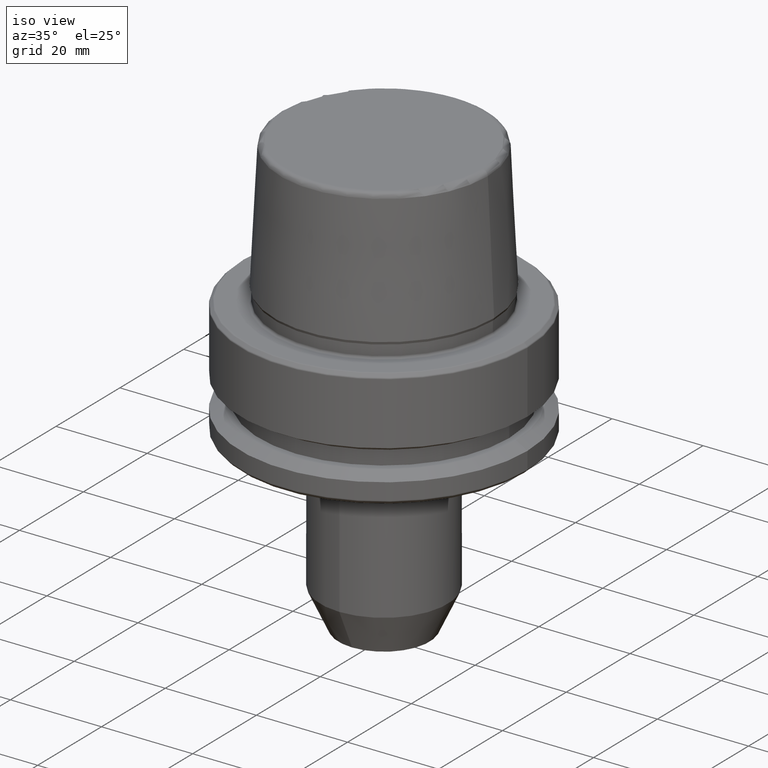
[diagram: clean part render]
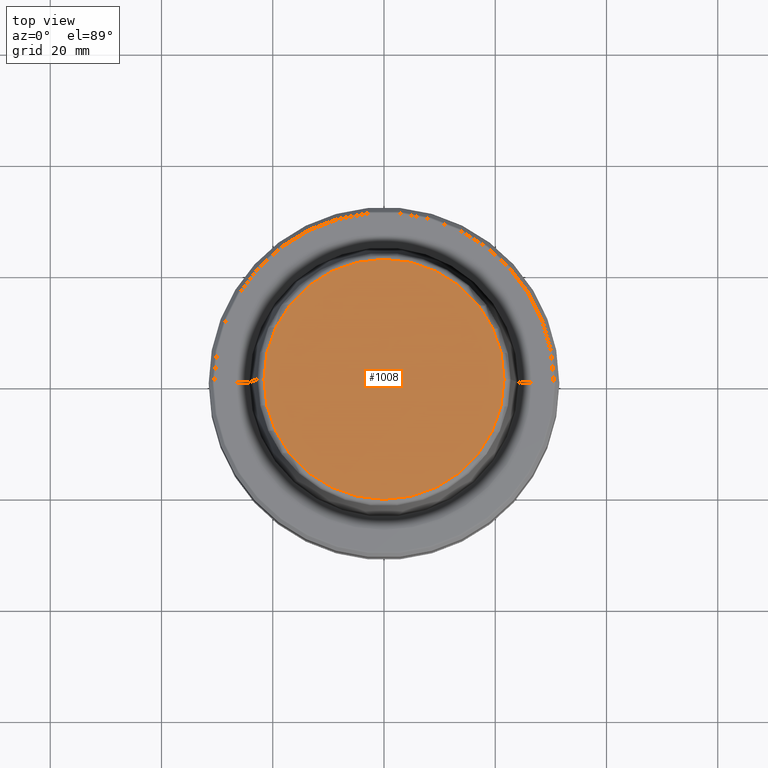
[diagram: tour spotlight — one face highlighted and labeled with its STEP entity id]
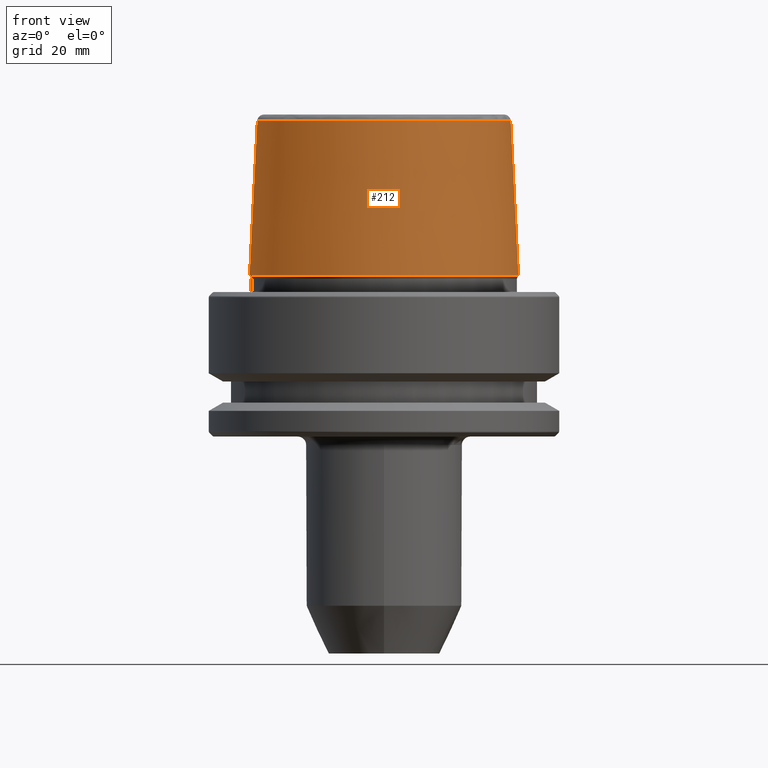
[diagram: tour spotlight — one face highlighted and labeled with its STEP entity id]
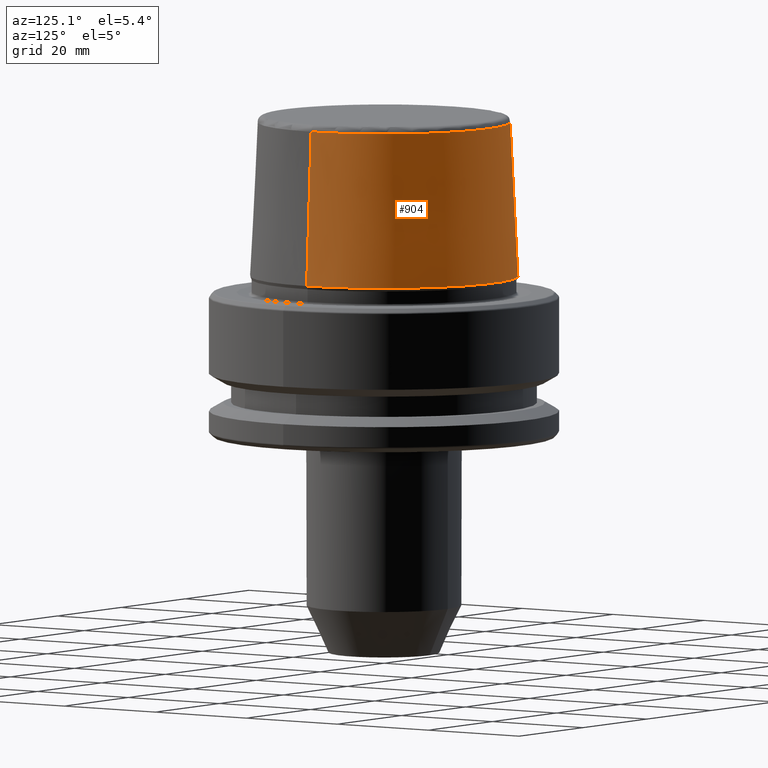
[diagram: tour spotlight — one face highlighted and labeled with its STEP entity id]
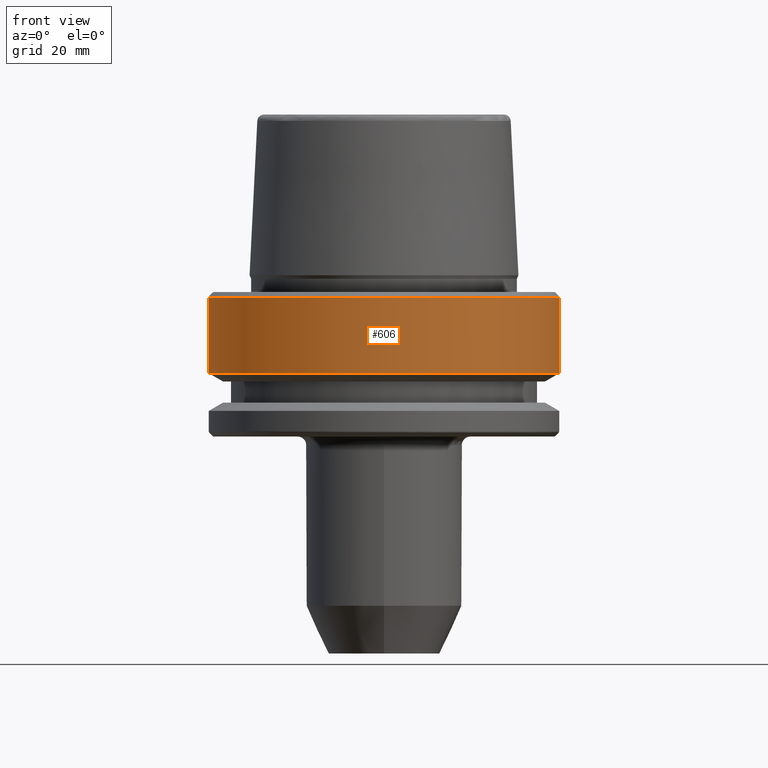
[diagram: tour spotlight — one face highlighted and labeled with its STEP entity id]
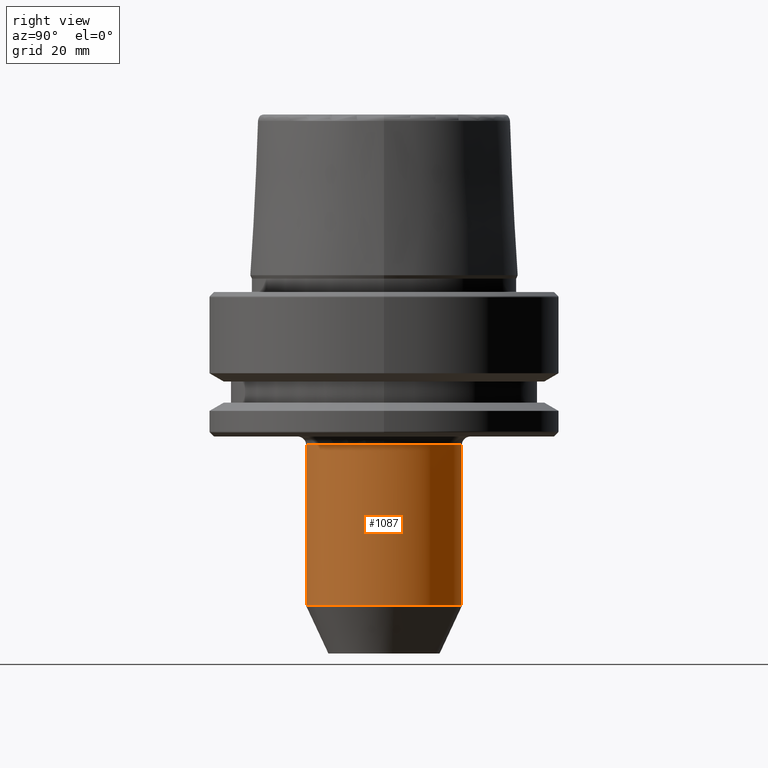
[diagram: tour spotlight — one face highlighted and labeled with its STEP entity id]
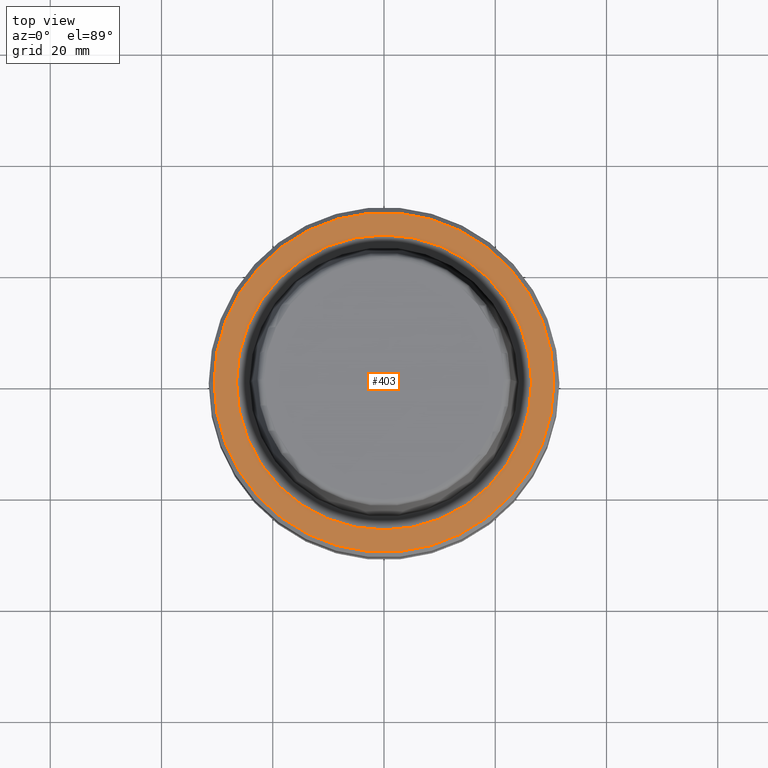
[diagram: tour spotlight — one face highlighted and labeled with its STEP entity id]
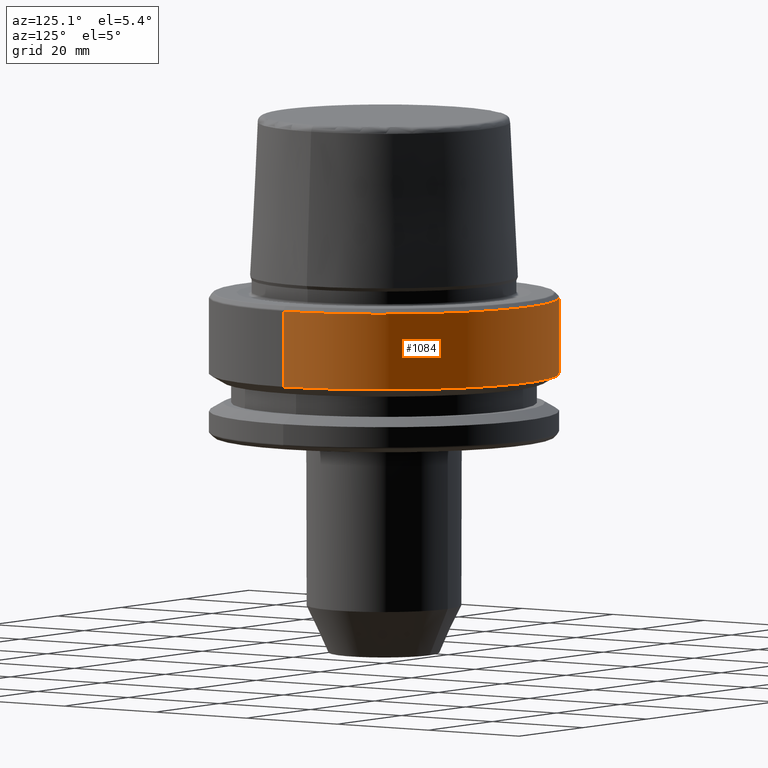
[diagram: tour spotlight — one face highlighted and labeled with its STEP entity id]
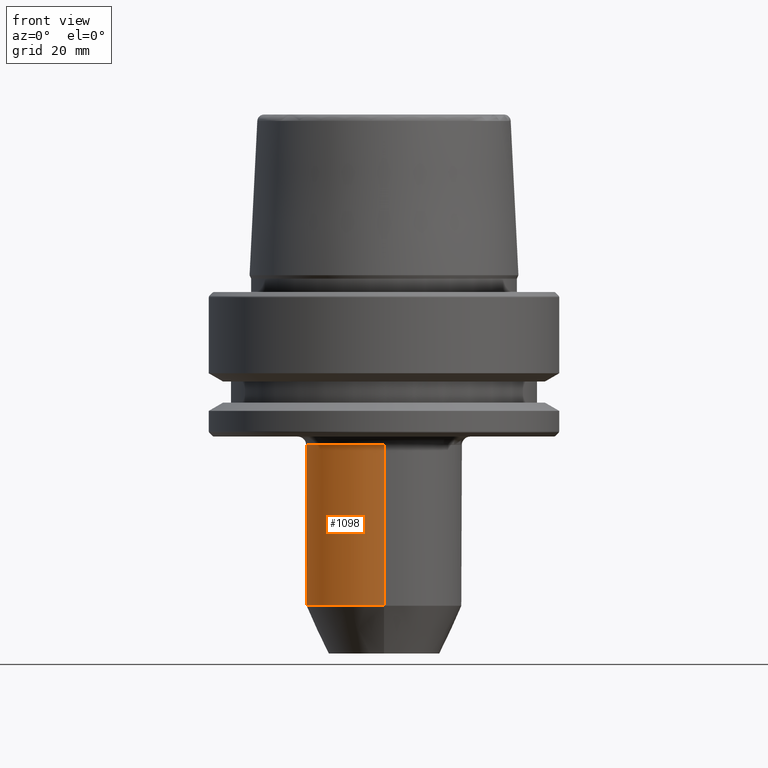
[diagram: tour spotlight — one face highlighted and labeled with its STEP entity id]
A machine part: a face-by-face anatomy tour. The part has 46 B-rep faces; the first image is the clean iso view, then the 8 largest visible faces are spotlighted one at a time (largest first), each with its STEP entity span.

Face 1 — top view, entity #1008. In plain terms, the highlighted planar face has unit normal (0, 0, -1).
Definition (entity closure, byte-faithful):
#27 = AXIS2_PLACEMENT_3D ( 'NONE', #905, #327, #1014 ) ;
#294 = CARTESIAN_POINT ( 'NONE',  ( 0.0000000000000000000, 0.0000000000000000000, 31.89999999999999900 ) ) ;
#319 = CIRCLE ( 'NONE', #27, 21.58108272732117100 ) ;
#327 = DIRECTION ( 'NONE',  ( -0.0000000000000000000, -0.0000000000000000000, 1.000000000000000000 ) ) ;
#358 = AXIS2_PLACEMENT_3D ( 'NONE', #744, #431, #1145 ) ;
#413 = AXIS2_PLACEMENT_3D ( 'NONE', #294, #1279, #685 ) ;
#431 = DIRECTION ( 'NONE',  ( -0.0000000000000000000, -0.0000000000000000000, 1.000000000000000000 ) ) ;
#524 = VERTEX_POINT ( 'NONE', #831 ) ;
#628 = ORIENTED_EDGE ( 'NONE', *, *, #1166, .T. ) ;
#684 = EDGE_CURVE ( 'NONE', #859, #524, #843, .T. ) ;
#685 = DIRECTION ( 'NONE',  ( -1.000000000000000000, 0.0000000000000000000, -0.0000000000000000000 ) ) ;
#744 = CARTESIAN_POINT ( 'NONE',  ( 0.0000000000000000000, 0.0000000000000000000, 31.89999999999999900 ) ) ;
#831 = CARTESIAN_POINT ( 'NONE',  ( 21.58108272732117100, 0.0000000000000000000, 31.89999999999999900 ) ) ;
#843 = CIRCLE ( 'NONE', #358, 21.58108272732117100 ) ;
#859 = VERTEX_POINT ( 'NONE', #1252 ) ;
#905 = CARTESIAN_POINT ( 'NONE',  ( 0.0000000000000000000, 0.0000000000000000000, 31.89999999999999900 ) ) ;
#962 = FACE_OUTER_BOUND ( 'NONE', #1271, .T. ) ;
#1008 = ADVANCED_FACE ( 'NONE', ( #962 ), #1174, .F. ) ;
#1014 = DIRECTION ( 'NONE',  ( 1.000000000000000000, 0.0000000000000000000, 0.0000000000000000000 ) ) ;
#1076 = ORIENTED_EDGE ( 'NONE', *, *, #684, .T. ) ;
#1145 = DIRECTION ( 'NONE',  ( 1.000000000000000000, 0.0000000000000000000, 0.0000000000000000000 ) ) ;
#1166 = EDGE_CURVE ( 'NONE', #524, #859, #319, .T. ) ;
#1174 = PLANE ( 'NONE',  #413 ) ;
#1252 = CARTESIAN_POINT ( 'NONE',  ( -21.58108272732117100, 2.716307157494421400E-015, 31.89999999999999900 ) ) ;
#1271 = EDGE_LOOP ( 'NONE', ( #628, #1076 ) ) ;
#1279 = DIRECTION ( 'NONE',  ( 0.0000000000000000000, 0.0000000000000000000, -1.000000000000000000 ) ) ;

Face 2 — front view, entity #212. In plain terms, the highlighted conical surface has half-angle 2.868 deg.
Definition (entity closure, byte-faithful):
#1 = EDGE_CURVE ( 'NONE', #22, #1111, #544, .T. ) ;
#22 = VERTEX_POINT ( 'NONE', #974 ) ;
#67 = CARTESIAN_POINT ( 'NONE',  ( -24.17032625081241900, 0.0000000000000000000, 3.000000000000002700 ) ) ;
#106 = DIRECTION ( 'NONE',  ( 1.000000000000000000, 0.0000000000000000000, 0.0000000000000000000 ) ) ;
#113 = ORIENTED_EDGE ( 'NONE', *, *, #1068, .F. ) ;
#120 = DIRECTION ( 'NONE',  ( 0.0000000000000000000, 0.0000000000000000000, -1.000000000000000000 ) ) ;
#137 = ORIENTED_EDGE ( 'NONE', *, *, #1, .T. ) ;
#148 = VERTEX_POINT ( 'NONE', #1227 ) ;
#192 = EDGE_CURVE ( 'NONE', #148, #22, #292, .T. ) ;
#199 = DIRECTION ( 'NONE',  ( 0.05003611051310799500, 6.127656258166094300E-018, -0.9987474093306675200 ) ) ;
#206 = DIRECTION ( 'NONE',  ( -0.0000000000000000000, -0.0000000000000000000, 1.000000000000000000 ) ) ;
#212 = ADVANCED_FACE ( 'NONE', ( #264 ), #1235, .T. ) ;
#258 = CARTESIAN_POINT ( 'NONE',  ( 0.0000000000000000000, 0.0000000000000000000, 3.000000000000002700 ) ) ;
#263 = AXIS2_PLACEMENT_3D ( 'NONE', #784, #206, #106 ) ;
#264 = FACE_OUTER_BOUND ( 'NONE', #1257, .T. ) ;
#292 = LINE ( 'NONE', #67, #701 ) ;
#299 = AXIS2_PLACEMENT_3D ( 'NONE', #258, #120, #797 ) ;
#303 = CARTESIAN_POINT ( 'NONE',  ( 24.17032625081241900, 2.960011267740467600E-015, 3.000000000000002700 ) ) ;
#521 = AXIS2_PLACEMENT_3D ( 'NONE', #585, #1270, #678 ) ;
#544 = CIRCLE ( 'NONE', #263, 24.17032625081241900 ) ;
#567 = VERTEX_POINT ( 'NONE', #863 ) ;
#585 = CARTESIAN_POINT ( 'NONE',  ( 0.0000000000000000000, 0.0000000000000000000, 30.76004333261571900 ) ) ;
#609 = CARTESIAN_POINT ( 'NONE',  ( 24.17032625081241900, 2.960011267740467600E-015, 3.000000000000002700 ) ) ;
#678 = DIRECTION ( 'NONE',  ( 1.000000000000000000, 0.0000000000000000000, 0.0000000000000000000 ) ) ;
#701 = VECTOR ( 'NONE', #1119, 1000.000000000000200 ) ;
#772 = LINE ( 'NONE', #303, #1206 ) ;
#784 = CARTESIAN_POINT ( 'NONE',  ( 0.0000000000000000000, 0.0000000000000000000, 3.000000000000002700 ) ) ;
#797 = DIRECTION ( 'NONE',  ( -1.000000000000000000, 0.0000000000000000000, 0.0000000000000000000 ) ) ;
#863 = CARTESIAN_POINT ( 'NONE',  ( 22.77957961851797500, 0.0000000000000000000, 30.76004333261571900 ) ) ;
#948 = EDGE_CURVE ( 'NONE', #148, #567, #1272, .T. ) ;
#974 = CARTESIAN_POINT ( 'NONE',  ( -24.17032625081241900, 0.0000000000000000000, 3.000000000000002700 ) ) ;
#1022 = ORIENTED_EDGE ( 'NONE', *, *, #948, .F. ) ;
#1023 = ORIENTED_EDGE ( 'NONE', *, *, #192, .T. ) ;
#1068 = EDGE_CURVE ( 'NONE', #567, #1111, #772, .T. ) ;
#1111 = VERTEX_POINT ( 'NONE', #609 ) ;
#1119 = DIRECTION ( 'NONE',  ( -0.05003611051310799500, 0.0000000000000000000, -0.9987474093306675200 ) ) ;
#1206 = VECTOR ( 'NONE', #199, 1000.000000000000200 ) ;
#1227 = CARTESIAN_POINT ( 'NONE',  ( -22.77957961851797500, 2.789693926574032200E-015, 30.76004333261571900 ) ) ;
#1235 = CONICAL_SURFACE ( 'NONE', #299, 24.17032625081241900, 0.05005701257455992500 ) ;
#1257 = EDGE_LOOP ( 'NONE', ( #113, #1022, #1023, #137 ) ) ;
#1270 = DIRECTION ( 'NONE',  ( -0.0000000000000000000, -0.0000000000000000000, 1.000000000000000000 ) ) ;
#1272 = CIRCLE ( 'NONE', #521, 22.77957961851797500 ) ;

Face 3 — auxiliary view, entity #904. In plain terms, the highlighted conical surface has half-angle 2.868 deg.
Definition (entity closure, byte-faithful):
#22 = VERTEX_POINT ( 'NONE', #974 ) ;
#58 = DIRECTION ( 'NONE',  ( 1.000000000000000000, 0.0000000000000000000, 0.0000000000000000000 ) ) ;
#67 = CARTESIAN_POINT ( 'NONE',  ( -24.17032625081241900, 0.0000000000000000000, 3.000000000000002700 ) ) ;
#70 = EDGE_LOOP ( 'NONE', ( #752, #1223, #382, #224 ) ) ;
#78 = AXIS2_PLACEMENT_3D ( 'NONE', #673, #765, #1263 ) ;
#100 = CARTESIAN_POINT ( 'NONE',  ( 0.0000000000000000000, 0.0000000000000000000, 3.000000000000002700 ) ) ;
#139 = DIRECTION ( 'NONE',  ( -0.0000000000000000000, -0.0000000000000000000, 1.000000000000000000 ) ) ;
#148 = VERTEX_POINT ( 'NONE', #1227 ) ;
#192 = EDGE_CURVE ( 'NONE', #148, #22, #292, .T. ) ;
#199 = DIRECTION ( 'NONE',  ( 0.05003611051310799500, 6.127656258166094300E-018, -0.9987474093306675200 ) ) ;
#215 = EDGE_CURVE ( 'NONE', #1111, #22, #1032, .T. ) ;
#224 = ORIENTED_EDGE ( 'NONE', *, *, #192, .F. ) ;
#233 = AXIS2_PLACEMENT_3D ( 'NONE', #100, #759, #58 ) ;
#292 = LINE ( 'NONE', #67, #701 ) ;
#303 = CARTESIAN_POINT ( 'NONE',  ( 24.17032625081241900, 2.960011267740467600E-015, 3.000000000000002700 ) ) ;
#382 = ORIENTED_EDGE ( 'NONE', *, *, #215, .T. ) ;
#567 = VERTEX_POINT ( 'NONE', #863 ) ;
#609 = CARTESIAN_POINT ( 'NONE',  ( 24.17032625081241900, 2.960011267740467600E-015, 3.000000000000002700 ) ) ;
#669 = FACE_OUTER_BOUND ( 'NONE', #70, .T. ) ;
#673 = CARTESIAN_POINT ( 'NONE',  ( 0.0000000000000000000, 0.0000000000000000000, 3.000000000000002700 ) ) ;
#701 = VECTOR ( 'NONE', #1119, 1000.000000000000200 ) ;
#719 = CARTESIAN_POINT ( 'NONE',  ( 0.0000000000000000000, 0.0000000000000000000, 30.76004333261571900 ) ) ;
#739 = EDGE_CURVE ( 'NONE', #567, #148, #1164, .T. ) ;
#752 = ORIENTED_EDGE ( 'NONE', *, *, #739, .F. ) ;
#759 = DIRECTION ( 'NONE',  ( -0.0000000000000000000, -0.0000000000000000000, 1.000000000000000000 ) ) ;
#765 = DIRECTION ( 'NONE',  ( 0.0000000000000000000, 0.0000000000000000000, -1.000000000000000000 ) ) ;
#772 = LINE ( 'NONE', #303, #1206 ) ;
#819 = DIRECTION ( 'NONE',  ( 1.000000000000000000, 0.0000000000000000000, 0.0000000000000000000 ) ) ;
#863 = CARTESIAN_POINT ( 'NONE',  ( 22.77957961851797500, 0.0000000000000000000, 30.76004333261571900 ) ) ;
#904 = ADVANCED_FACE ( 'NONE', ( #669 ), #1007, .T. ) ;
#960 = AXIS2_PLACEMENT_3D ( 'NONE', #719, #139, #819 ) ;
#974 = CARTESIAN_POINT ( 'NONE',  ( -24.17032625081241900, 0.0000000000000000000, 3.000000000000002700 ) ) ;
#1007 = CONICAL_SURFACE ( 'NONE', #78, 24.17032625081241900, 0.05005701257455992500 ) ;
#1032 = CIRCLE ( 'NONE', #233, 24.17032625081241900 ) ;
#1068 = EDGE_CURVE ( 'NONE', #567, #1111, #772, .T. ) ;
#1111 = VERTEX_POINT ( 'NONE', #609 ) ;
#1119 = DIRECTION ( 'NONE',  ( -0.05003611051310799500, 0.0000000000000000000, -0.9987474093306675200 ) ) ;
#1164 = CIRCLE ( 'NONE', #960, 22.77957961851797500 ) ;
#1206 = VECTOR ( 'NONE', #199, 1000.000000000000200 ) ;
#1223 = ORIENTED_EDGE ( 'NONE', *, *, #1068, .T. ) ;
#1227 = CARTESIAN_POINT ( 'NONE',  ( -22.77957961851797500, 2.789693926574032200E-015, 30.76004333261571900 ) ) ;
#1263 = DIRECTION ( 'NONE',  ( -1.000000000000000000, 0.0000000000000000000, 0.0000000000000000000 ) ) ;

Face 4 — front view, entity #606. In plain terms, the highlighted cylindrical surface (partial cylindrical patch) has radius 31.5 mm, axis along (-0, -0, 1).
Definition (entity closure, byte-faithful):
#14 = AXIS2_PLACEMENT_3D ( 'NONE', #235, #920, #340 ) ;
#46 = DIRECTION ( 'NONE',  ( -0.0000000000000000000, -0.0000000000000000000, 1.000000000000000000 ) ) ;
#65 = VECTOR ( 'NONE', #513, 1000.000000000000000 ) ;
#112 = DIRECTION ( 'NONE',  ( -0.0000000000000000000, -0.0000000000000000000, 1.000000000000000000 ) ) ;
#156 = FACE_OUTER_BOUND ( 'NONE', #480, .T. ) ;
#176 = ORIENTED_EDGE ( 'NONE', *, *, #1236, .T. ) ;
#188 = CARTESIAN_POINT ( 'NONE',  ( 0.0000000000000000000, 0.0000000000000000000, -0.9656854249492363700 ) ) ;
#235 = CARTESIAN_POINT ( 'NONE',  ( 0.0000000000000000000, 0.0000000000000000000, -14.62250092524070100 ) ) ;
#272 = ORIENTED_EDGE ( 'NONE', *, *, #964, .F. ) ;
#283 = EDGE_CURVE ( 'NONE', #680, #838, #490, .T. ) ;
#289 = DIRECTION ( 'NONE',  ( 1.000000000000000000, 0.0000000000000000000, 0.0000000000000000000 ) ) ;
#340 = DIRECTION ( 'NONE',  ( 1.000000000000000000, 0.0000000000000000000, 0.0000000000000000000 ) ) ;
#360 = CARTESIAN_POINT ( 'NONE',  ( -31.50000000000000000, 3.857637417314162700E-015, -14.62250092524070100 ) ) ;
#450 = CARTESIAN_POINT ( 'NONE',  ( 31.50000000000000000, 0.0000000000000000000, -0.9656854249492363700 ) ) ;
#457 = LINE ( 'NONE', #1172, #65 ) ;
#480 = EDGE_LOOP ( 'NONE', ( #977, #176, #632, #272 ) ) ;
#490 = LINE ( 'NONE', #1230, #751 ) ;
#510 = VERTEX_POINT ( 'NONE', #619 ) ;
#513 = DIRECTION ( 'NONE',  ( -0.0000000000000000000, -0.0000000000000000000, 1.000000000000000000 ) ) ;
#517 = EDGE_CURVE ( 'NONE', #614, #510, #457, .T. ) ;
#576 = CARTESIAN_POINT ( 'NONE',  ( 31.50000000000000000, 0.0000000000000000000, -14.62250092524070100 ) ) ;
#606 = ADVANCED_FACE ( 'NONE', ( #156 ), #1196, .T. ) ;
#614 = VERTEX_POINT ( 'NONE', #360 ) ;
#619 = CARTESIAN_POINT ( 'NONE',  ( -31.50000000000000000, 3.857637417314161900E-015, -0.9656854249492363700 ) ) ;
#632 = ORIENTED_EDGE ( 'NONE', *, *, #283, .T. ) ;
#680 = VERTEX_POINT ( 'NONE', #576 ) ;
#736 = AXIS2_PLACEMENT_3D ( 'NONE', #188, #869, #289 ) ;
#751 = VECTOR ( 'NONE', #112, 1000.000000000000000 ) ;
#792 = AXIS2_PLACEMENT_3D ( 'NONE', #1113, #46, #845 ) ;
#838 = VERTEX_POINT ( 'NONE', #450 ) ;
#845 = DIRECTION ( 'NONE',  ( 1.000000000000000000, 0.0000000000000000000, 0.0000000000000000000 ) ) ;
#849 = CIRCLE ( 'NONE', #736, 31.50000000000000000 ) ;
#869 = DIRECTION ( 'NONE',  ( -0.0000000000000000000, -0.0000000000000000000, 1.000000000000000000 ) ) ;
#879 = CIRCLE ( 'NONE', #14, 31.50000000000000000 ) ;
#920 = DIRECTION ( 'NONE',  ( -0.0000000000000000000, -0.0000000000000000000, 1.000000000000000000 ) ) ;
#964 = EDGE_CURVE ( 'NONE', #510, #838, #849, .T. ) ;
#977 = ORIENTED_EDGE ( 'NONE', *, *, #517, .F. ) ;
#1113 = CARTESIAN_POINT ( 'NONE',  ( 0.0000000000000000000, 0.0000000000000000000, 78.96908074195309300 ) ) ;
#1172 = CARTESIAN_POINT ( 'NONE',  ( -31.50000000000000000, 3.857637417314162700E-015, 78.96908074195309300 ) ) ;
#1196 = CYLINDRICAL_SURFACE ( 'NONE', #792, 31.50000000000000000 ) ;
#1230 = CARTESIAN_POINT ( 'NONE',  ( 31.50000000000000000, 0.0000000000000000000, 78.96908074195309300 ) ) ;
#1236 = EDGE_CURVE ( 'NONE', #614, #680, #879, .T. ) ;

Face 5 — right view, entity #1087. In plain terms, the highlighted cylindrical surface (partial cylindrical patch) has radius 14 mm, axis along (-0, -0, -1).
Definition (entity closure, byte-faithful):
#2 = CARTESIAN_POINT ( 'NONE',  ( 14.00000000000000200, -1.648562998852209200E-016, -27.50000000000001100 ) ) ;
#8 = CARTESIAN_POINT ( 'NONE',  ( 0.0000000000000000000, -3.343502527699849600E-015, -56.42197231796170300 ) ) ;
#23 = AXIS2_PLACEMENT_3D ( 'NONE', #607, #515, #994 ) ;
#35 = VECTOR ( 'NONE', #477, 1000.000000000000000 ) ;
#107 = DIRECTION ( 'NONE',  ( 0.0000000000000000000, 1.000000000000000000, 0.0000000000000000000 ) ) ;
#122 = CARTESIAN_POINT ( 'NONE',  ( 0.0000000000000000000, -1.648562998852209200E-016, -27.50000000000001100 ) ) ;
#133 = DIRECTION ( 'NONE',  ( 0.0000000000000000000, 0.0000000000000000000, -1.000000000000000000 ) ) ;
#134 = CIRCLE ( 'NONE', #554, 14.00000000000000400 ) ;
#144 = CARTESIAN_POINT ( 'NONE',  ( 0.0000000000000000000, 13.99999999999999800, -65.00000000000000000 ) ) ;
#198 = DIRECTION ( 'NONE',  ( -0.0000000000000000000, -1.099041999234804300E-016, -1.000000000000000000 ) ) ;
#222 = VERTEX_POINT ( 'NONE', #451 ) ;
#238 = VERTEX_POINT ( 'NONE', #1190 ) ;
#243 = EDGE_CURVE ( 'NONE', #788, #222, #1217, .T. ) ;
#253 = VERTEX_POINT ( 'NONE', #2 ) ;
#273 = CYLINDRICAL_SURFACE ( 'NONE', #23, 14.00000000000000200 ) ;
#312 = CARTESIAN_POINT ( 'NONE',  ( 0.0000000000000000000, -1.648562998852209200E-016, -27.50000000000001100 ) ) ;
#315 = DIRECTION ( 'NONE',  ( 0.0000000000000000000, 0.0000000000000000000, -1.000000000000000000 ) ) ;
#337 = CARTESIAN_POINT ( 'NONE',  ( 1.714505518806294800E-015, -14.00000000000000200, -27.50000000000001100 ) ) ;
#451 = CARTESIAN_POINT ( 'NONE',  ( 0.0000000000000000000, -14.00000000000000900, -56.42197231796170300 ) ) ;
#474 = EDGE_CURVE ( 'NONE', #253, #788, #651, .T. ) ;
#477 = DIRECTION ( 'NONE',  ( -0.0000000000000000000, -1.099041999234804300E-016, -1.000000000000000000 ) ) ;
#491 = EDGE_CURVE ( 'NONE', #753, #253, #951, .T. ) ;
#515 = DIRECTION ( 'NONE',  ( -0.0000000000000000000, -1.099041999234804300E-016, -1.000000000000000000 ) ) ;
#554 = AXIS2_PLACEMENT_3D ( 'NONE', #8, #689, #107 ) ;
#556 = EDGE_LOOP ( 'NONE', ( #663, #1131, #597, #1261, #1259 ) ) ;
#565 = EDGE_CURVE ( 'NONE', #753, #238, #660, .T. ) ;
#597 = ORIENTED_EDGE ( 'NONE', *, *, #243, .T. ) ;
#607 = CARTESIAN_POINT ( 'NONE',  ( 0.0000000000000000000, -4.286263797015735700E-015, -65.00000000000000000 ) ) ;
#651 = CIRCLE ( 'NONE', #1232, 14.00000000000000200 ) ;
#660 = LINE ( 'NONE', #144, #865 ) ;
#663 = ORIENTED_EDGE ( 'NONE', *, *, #491, .T. ) ;
#689 = DIRECTION ( 'NONE',  ( -0.0000000000000000000, -1.099041999234804300E-016, -1.000000000000000000 ) ) ;
#742 = FACE_OUTER_BOUND ( 'NONE', #556, .T. ) ;
#753 = VERTEX_POINT ( 'NONE', #1112 ) ;
#788 = VERTEX_POINT ( 'NONE', #337 ) ;
#865 = VECTOR ( 'NONE', #198, 1000.000000000000000 ) ;
#898 = DIRECTION ( 'NONE',  ( 1.000000000000000000, 0.0000000000000000000, 0.0000000000000000000 ) ) ;
#935 = DIRECTION ( 'NONE',  ( 1.000000000000000000, 0.0000000000000000000, 0.0000000000000000000 ) ) ;
#951 = CIRCLE ( 'NONE', #1191, 14.00000000000000200 ) ;
#994 = DIRECTION ( 'NONE',  ( 0.0000000000000000000, 1.000000000000000000, 0.0000000000000000000 ) ) ;
#1055 = EDGE_CURVE ( 'NONE', #238, #222, #134, .T. ) ;
#1087 = ADVANCED_FACE ( 'NONE', ( #742 ), #273, .T. ) ;
#1112 = CARTESIAN_POINT ( 'NONE',  ( 0.0000000000000000000, 14.00000000000000400, -27.50000000000001100 ) ) ;
#1131 = ORIENTED_EDGE ( 'NONE', *, *, #474, .T. ) ;
#1168 = CARTESIAN_POINT ( 'NONE',  ( 1.714505518806294800E-015, -14.00000000000000500, -65.00000000000000000 ) ) ;
#1190 = CARTESIAN_POINT ( 'NONE',  ( 1.714505518806294800E-015, 14.00000000000000200, -56.42197231796170300 ) ) ;
#1191 = AXIS2_PLACEMENT_3D ( 'NONE', #122, #315, #935 ) ;
#1217 = LINE ( 'NONE', #1168, #35 ) ;
#1232 = AXIS2_PLACEMENT_3D ( 'NONE', #312, #133, #898 ) ;
#1259 = ORIENTED_EDGE ( 'NONE', *, *, #565, .F. ) ;
#1261 = ORIENTED_EDGE ( 'NONE', *, *, #1055, .F. ) ;

Face 6 — top view, entity #403. In plain terms, the highlighted planar face has unit normal (0, 0, -1).
Definition (entity closure, byte-faithful):
#3 = DIRECTION ( 'NONE',  ( -0.0000000000000000000, -0.0000000000000000000, 1.000000000000000000 ) ) ;
#24 = CIRCLE ( 'NONE', #1104, 30.53431457505076100 ) ;
#32 = DIRECTION ( 'NONE',  ( -1.000000000000000000, 0.0000000000000000000, -0.0000000000000000000 ) ) ;
#48 = EDGE_CURVE ( 'NONE', #1130, #285, #697, .T. ) ;
#55 = ORIENTED_EDGE ( 'NONE', *, *, #48, .T. ) ;
#98 = AXIS2_PLACEMENT_3D ( 'NONE', #602, #3, #687 ) ;
#105 = CARTESIAN_POINT ( 'NONE',  ( -26.52499999999999900, 3.248375634738354300E-015, 0.0000000000000000000 ) ) ;
#130 = AXIS2_PLACEMENT_3D ( 'NONE', #523, #1198, #616 ) ;
#219 = EDGE_LOOP ( 'NONE', ( #1010, #55 ) ) ;
#285 = VERTEX_POINT ( 'NONE', #311 ) ;
#311 = CARTESIAN_POINT ( 'NONE',  ( 30.53431457505076100, 0.0000000000000000000, 0.0000000000000000000 ) ) ;
#326 = FACE_BOUND ( 'NONE', #1077, .T. ) ;
#403 = ADVANCED_FACE ( 'NONE', ( #326, #1000 ), #1011, .F. ) ;
#454 = CARTESIAN_POINT ( 'NONE',  ( 0.0000000000000000000, 26.52499999999999900, -1.978668964786045600E-015 ) ) ;
#479 = ORIENTED_EDGE ( 'NONE', *, *, #1018, .F. ) ;
#499 = CIRCLE ( 'NONE', #98, 26.52499999999999900 ) ;
#502 = DIRECTION ( 'NONE',  ( -0.0000000000000000000, -0.0000000000000000000, 1.000000000000000000 ) ) ;
#523 = CARTESIAN_POINT ( 'NONE',  ( 0.0000000000000000000, 0.0000000000000000000, 0.0000000000000000000 ) ) ;
#528 = VERTEX_POINT ( 'NONE', #105 ) ;
#571 = CARTESIAN_POINT ( 'NONE',  ( 26.52499999999999900, 0.0000000000000000000, 0.0000000000000000000 ) ) ;
#602 = CARTESIAN_POINT ( 'NONE',  ( 0.0000000000000000000, 0.0000000000000000000, 0.0000000000000000000 ) ) ;
#616 = DIRECTION ( 'NONE',  ( 1.000000000000000000, 0.0000000000000000000, 0.0000000000000000000 ) ) ;
#687 = DIRECTION ( 'NONE',  ( 1.000000000000000000, 0.0000000000000000000, 0.0000000000000000000 ) ) ;
#697 = CIRCLE ( 'NONE', #716, 30.53431457505076100 ) ;
#704 = DIRECTION ( 'NONE',  ( 0.0000000000000000000, 0.0000000000000000000, -1.000000000000000000 ) ) ;
#716 = AXIS2_PLACEMENT_3D ( 'NONE', #1146, #1081, #1152 ) ;
#757 = CIRCLE ( 'NONE', #130, 26.52499999999999900 ) ;
#798 = CARTESIAN_POINT ( 'NONE',  ( -30.53431457505076100, 3.756694181974138600E-015, 0.0000000000000000000 ) ) ;
#860 = VERTEX_POINT ( 'NONE', #571 ) ;
#911 = ORIENTED_EDGE ( 'NONE', *, *, #1118, .F. ) ;
#971 = EDGE_CURVE ( 'NONE', #285, #1130, #24, .T. ) ;
#1000 = FACE_OUTER_BOUND ( 'NONE', #219, .T. ) ;
#1010 = ORIENTED_EDGE ( 'NONE', *, *, #971, .T. ) ;
#1011 = PLANE ( 'NONE',  #1214 ) ;
#1018 = EDGE_CURVE ( 'NONE', #528, #860, #499, .T. ) ;
#1069 = CARTESIAN_POINT ( 'NONE',  ( 0.0000000000000000000, 0.0000000000000000000, 0.0000000000000000000 ) ) ;
#1077 = EDGE_LOOP ( 'NONE', ( #911, #479 ) ) ;
#1081 = DIRECTION ( 'NONE',  ( -0.0000000000000000000, -0.0000000000000000000, 1.000000000000000000 ) ) ;
#1104 = AXIS2_PLACEMENT_3D ( 'NONE', #1069, #502, #1167 ) ;
#1118 = EDGE_CURVE ( 'NONE', #860, #528, #757, .T. ) ;
#1130 = VERTEX_POINT ( 'NONE', #798 ) ;
#1146 = CARTESIAN_POINT ( 'NONE',  ( 0.0000000000000000000, 0.0000000000000000000, 0.0000000000000000000 ) ) ;
#1152 = DIRECTION ( 'NONE',  ( 1.000000000000000000, 0.0000000000000000000, 0.0000000000000000000 ) ) ;
#1167 = DIRECTION ( 'NONE',  ( 1.000000000000000000, 0.0000000000000000000, 0.0000000000000000000 ) ) ;
#1198 = DIRECTION ( 'NONE',  ( -0.0000000000000000000, -0.0000000000000000000, 1.000000000000000000 ) ) ;
#1214 = AXIS2_PLACEMENT_3D ( 'NONE', #454, #704, #32 ) ;

Face 7 — auxiliary view, entity #1084. In plain terms, the highlighted cylindrical surface (partial cylindrical patch) has radius 31.5 mm, axis along (-0, -0, 1).
Definition (entity closure, byte-faithful):
#19 = ORIENTED_EDGE ( 'NONE', *, *, #1041, .F. ) ;
#63 = AXIS2_PLACEMENT_3D ( 'NONE', #986, #402, #1082 ) ;
#65 = VECTOR ( 'NONE', #513, 1000.000000000000000 ) ;
#112 = DIRECTION ( 'NONE',  ( -0.0000000000000000000, -0.0000000000000000000, 1.000000000000000000 ) ) ;
#160 = ORIENTED_EDGE ( 'NONE', *, *, #517, .T. ) ;
#193 = EDGE_LOOP ( 'NONE', ( #234, #160, #19, #481 ) ) ;
#225 = CYLINDRICAL_SURFACE ( 'NONE', #265, 31.50000000000000000 ) ;
#234 = ORIENTED_EDGE ( 'NONE', *, *, #866, .T. ) ;
#237 = AXIS2_PLACEMENT_3D ( 'NONE', #855, #275, #957 ) ;
#265 = AXIS2_PLACEMENT_3D ( 'NONE', #881, #405, #604 ) ;
#275 = DIRECTION ( 'NONE',  ( -0.0000000000000000000, -0.0000000000000000000, 1.000000000000000000 ) ) ;
#283 = EDGE_CURVE ( 'NONE', #680, #838, #490, .T. ) ;
#360 = CARTESIAN_POINT ( 'NONE',  ( -31.50000000000000000, 3.857637417314162700E-015, -14.62250092524070100 ) ) ;
#402 = DIRECTION ( 'NONE',  ( -0.0000000000000000000, -0.0000000000000000000, 1.000000000000000000 ) ) ;
#405 = DIRECTION ( 'NONE',  ( -0.0000000000000000000, -0.0000000000000000000, 1.000000000000000000 ) ) ;
#450 = CARTESIAN_POINT ( 'NONE',  ( 31.50000000000000000, 0.0000000000000000000, -0.9656854249492363700 ) ) ;
#457 = LINE ( 'NONE', #1172, #65 ) ;
#481 = ORIENTED_EDGE ( 'NONE', *, *, #283, .F. ) ;
#490 = LINE ( 'NONE', #1230, #751 ) ;
#510 = VERTEX_POINT ( 'NONE', #619 ) ;
#513 = DIRECTION ( 'NONE',  ( -0.0000000000000000000, -0.0000000000000000000, 1.000000000000000000 ) ) ;
#517 = EDGE_CURVE ( 'NONE', #614, #510, #457, .T. ) ;
#568 = CIRCLE ( 'NONE', #237, 31.50000000000000000 ) ;
#576 = CARTESIAN_POINT ( 'NONE',  ( 31.50000000000000000, 0.0000000000000000000, -14.62250092524070100 ) ) ;
#604 = DIRECTION ( 'NONE',  ( 1.000000000000000000, 0.0000000000000000000, 0.0000000000000000000 ) ) ;
#614 = VERTEX_POINT ( 'NONE', #360 ) ;
#619 = CARTESIAN_POINT ( 'NONE',  ( -31.50000000000000000, 3.857637417314161900E-015, -0.9656854249492363700 ) ) ;
#680 = VERTEX_POINT ( 'NONE', #576 ) ;
#751 = VECTOR ( 'NONE', #112, 1000.000000000000000 ) ;
#838 = VERTEX_POINT ( 'NONE', #450 ) ;
#855 = CARTESIAN_POINT ( 'NONE',  ( 0.0000000000000000000, 0.0000000000000000000, -14.62250092524070100 ) ) ;
#866 = EDGE_CURVE ( 'NONE', #680, #614, #568, .T. ) ;
#881 = CARTESIAN_POINT ( 'NONE',  ( 0.0000000000000000000, 0.0000000000000000000, 78.96908074195309300 ) ) ;
#957 = DIRECTION ( 'NONE',  ( 1.000000000000000000, 0.0000000000000000000, 0.0000000000000000000 ) ) ;
#986 = CARTESIAN_POINT ( 'NONE',  ( 0.0000000000000000000, 0.0000000000000000000, -0.9656854249492363700 ) ) ;
#1041 = EDGE_CURVE ( 'NONE', #838, #510, #1245, .T. ) ;
#1082 = DIRECTION ( 'NONE',  ( 1.000000000000000000, 0.0000000000000000000, 0.0000000000000000000 ) ) ;
#1084 = ADVANCED_FACE ( 'NONE', ( #1127 ), #225, .T. ) ;
#1127 = FACE_OUTER_BOUND ( 'NONE', #193, .T. ) ;
#1172 = CARTESIAN_POINT ( 'NONE',  ( -31.50000000000000000, 3.857637417314162700E-015, 78.96908074195309300 ) ) ;
#1230 = CARTESIAN_POINT ( 'NONE',  ( 31.50000000000000000, 0.0000000000000000000, 78.96908074195309300 ) ) ;
#1245 = CIRCLE ( 'NONE', #63, 31.50000000000000000 ) ;

Face 8 — front view, entity #1098. In plain terms, the highlighted cylindrical surface (partial cylindrical patch) has radius 14 mm, axis along (-0, -0, -1).
Definition (entity closure, byte-faithful):
#21 = CARTESIAN_POINT ( 'NONE',  ( -14.00000000000000200, 1.641497728857125300E-015, -27.50000000000001100 ) ) ;
#35 = VECTOR ( 'NONE', #477, 1000.000000000000000 ) ;
#39 = DIRECTION ( 'NONE',  ( -0.0000000000000000000, -1.099041999234804300E-016, -1.000000000000000000 ) ) ;
#144 = CARTESIAN_POINT ( 'NONE',  ( 0.0000000000000000000, 13.99999999999999800, -65.00000000000000000 ) ) ;
#198 = DIRECTION ( 'NONE',  ( -0.0000000000000000000, -1.099041999234804300E-016, -1.000000000000000000 ) ) ;
#222 = VERTEX_POINT ( 'NONE', #451 ) ;
#238 = VERTEX_POINT ( 'NONE', #1190 ) ;
#243 = EDGE_CURVE ( 'NONE', #788, #222, #1217, .T. ) ;
#249 = DIRECTION ( 'NONE',  ( 0.0000000000000000000, 1.000000000000000000, 0.0000000000000000000 ) ) ;
#255 = ORIENTED_EDGE ( 'NONE', *, *, #270, .F. ) ;
#270 = EDGE_CURVE ( 'NONE', #222, #238, #686, .T. ) ;
#288 = CARTESIAN_POINT ( 'NONE',  ( 0.0000000000000000000, -1.648562998852209200E-016, -27.50000000000001100 ) ) ;
#337 = CARTESIAN_POINT ( 'NONE',  ( 1.714505518806294800E-015, -14.00000000000000200, -27.50000000000001100 ) ) ;
#427 = ORIENTED_EDGE ( 'NONE', *, *, #641, .T. ) ;
#451 = CARTESIAN_POINT ( 'NONE',  ( 0.0000000000000000000, -14.00000000000000900, -56.42197231796170300 ) ) ;
#477 = DIRECTION ( 'NONE',  ( -0.0000000000000000000, -1.099041999234804300E-016, -1.000000000000000000 ) ) ;
#487 = CARTESIAN_POINT ( 'NONE',  ( 0.0000000000000000000, -1.648562998852209200E-016, -27.50000000000001100 ) ) ;
#519 = DIRECTION ( 'NONE',  ( 0.0000000000000000000, 1.000000000000000000, 0.0000000000000000000 ) ) ;
#532 = AXIS2_PLACEMENT_3D ( 'NONE', #288, #864, #973 ) ;
#565 = EDGE_CURVE ( 'NONE', #753, #238, #660, .T. ) ;
#569 = AXIS2_PLACEMENT_3D ( 'NONE', #1029, #39, #249 ) ;
#588 = DIRECTION ( 'NONE',  ( 1.000000000000000000, 0.0000000000000000000, 0.0000000000000000000 ) ) ;
#641 = EDGE_CURVE ( 'NONE', #788, #1154, #811, .T. ) ;
#660 = LINE ( 'NONE', #144, #865 ) ;
#661 = EDGE_CURVE ( 'NONE', #1154, #753, #1199, .T. ) ;
#686 = CIRCLE ( 'NONE', #569, 14.00000000000000400 ) ;
#695 = DIRECTION ( 'NONE',  ( -0.0000000000000000000, -1.099041999234804300E-016, -1.000000000000000000 ) ) ;
#753 = VERTEX_POINT ( 'NONE', #1112 ) ;
#788 = VERTEX_POINT ( 'NONE', #337 ) ;
#794 = CARTESIAN_POINT ( 'NONE',  ( 0.0000000000000000000, -4.286263797015735700E-015, -65.00000000000000000 ) ) ;
#811 = CIRCLE ( 'NONE', #870, 14.00000000000000200 ) ;
#839 = ORIENTED_EDGE ( 'NONE', *, *, #565, .T. ) ;
#864 = DIRECTION ( 'NONE',  ( 0.0000000000000000000, 0.0000000000000000000, -1.000000000000000000 ) ) ;
#865 = VECTOR ( 'NONE', #198, 1000.000000000000000 ) ;
#870 = AXIS2_PLACEMENT_3D ( 'NONE', #487, #1262, #588 ) ;
#890 = ORIENTED_EDGE ( 'NONE', *, *, #243, .F. ) ;
#894 = EDGE_LOOP ( 'NONE', ( #890, #427, #1211, #839, #255 ) ) ;
#912 = CYLINDRICAL_SURFACE ( 'NONE', #1153, 14.00000000000000200 ) ;
#973 = DIRECTION ( 'NONE',  ( 1.000000000000000000, 0.0000000000000000000, 0.0000000000000000000 ) ) ;
#1029 = CARTESIAN_POINT ( 'NONE',  ( 0.0000000000000000000, -3.343502527699849600E-015, -56.42197231796170300 ) ) ;
#1078 = FACE_OUTER_BOUND ( 'NONE', #894, .T. ) ;
#1098 = ADVANCED_FACE ( 'NONE', ( #1078 ), #912, .T. ) ;
#1112 = CARTESIAN_POINT ( 'NONE',  ( 0.0000000000000000000, 14.00000000000000400, -27.50000000000001100 ) ) ;
#1153 = AXIS2_PLACEMENT_3D ( 'NONE', #794, #695, #519 ) ;
#1154 = VERTEX_POINT ( 'NONE', #21 ) ;
#1168 = CARTESIAN_POINT ( 'NONE',  ( 1.714505518806294800E-015, -14.00000000000000500, -65.00000000000000000 ) ) ;
#1190 = CARTESIAN_POINT ( 'NONE',  ( 1.714505518806294800E-015, 14.00000000000000200, -56.42197231796170300 ) ) ;
#1199 = CIRCLE ( 'NONE', #532, 14.00000000000000200 ) ;
#1211 = ORIENTED_EDGE ( 'NONE', *, *, #661, .T. ) ;
#1217 = LINE ( 'NONE', #1168, #35 ) ;
#1262 = DIRECTION ( 'NONE',  ( 0.0000000000000000000, 0.0000000000000000000, -1.000000000000000000 ) ) ;